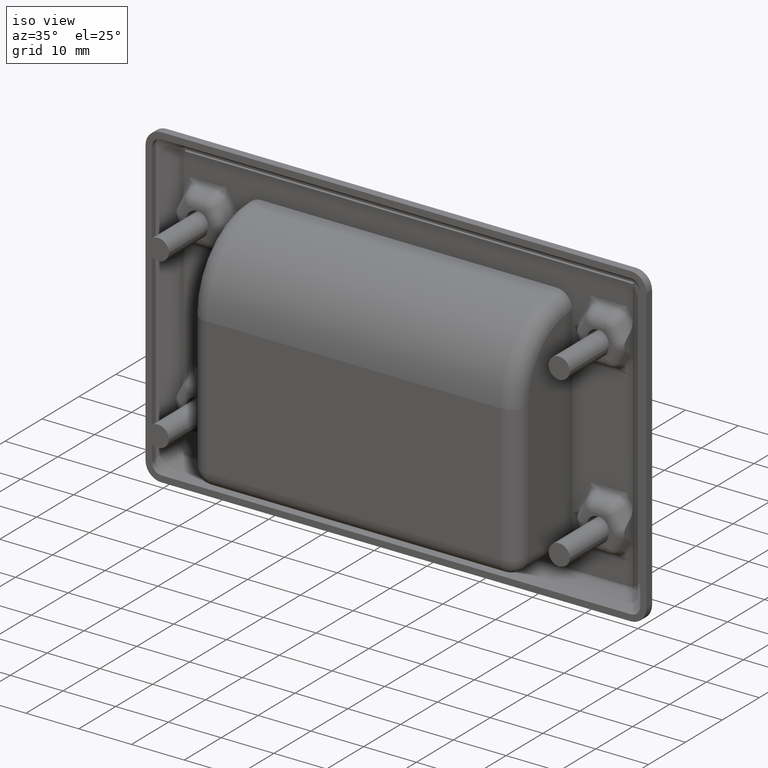
[diagram: clean part render]
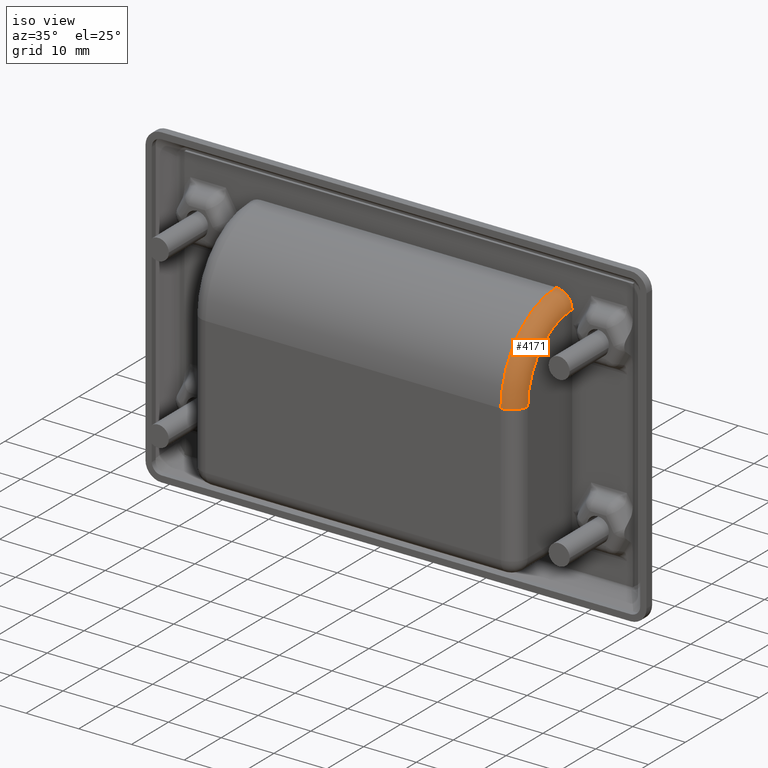
[diagram: same view with one face highlighted and labeled with its STEP entity id]
A machine part, iso view. The second image highlights one B-rep face of the part: STEP entity #4171.
In plain terms, the highlighted toroidal blend (fillet) surface has major radius 12 mm and minor (blend) radius 3 mm.
Its self-contained STEP definition (entity closure, byte-faithful):
#20=TOROIDAL_SURFACE('',#4644,12.,3.);
#1180=FACE_OUTER_BOUND('',#1470,.T.);
#1470=EDGE_LOOP('',(#3710,#3711,#3712,#3713));
#1658=CIRCLE('',#4642,15.);
#1659=CIRCLE('',#4645,3.);
#1660=CIRCLE('',#4646,12.);
#1661=CIRCLE('',#4647,3.);
#2005=VERTEX_POINT('',#8267);
#2006=VERTEX_POINT('',#8269);
#2008=VERTEX_POINT('',#8277);
#2009=VERTEX_POINT('',#8279);
#2588=EDGE_CURVE('',#2006,#2005,#1658,.T.);
#2592=EDGE_CURVE('',#2005,#2008,#1659,.T.);
#2593=EDGE_CURVE('',#2008,#2009,#1660,.T.);
#2594=EDGE_CURVE('',#2009,#2006,#1661,.F.);
#3710=ORIENTED_EDGE('',*,*,#2592,.T.);
#3711=ORIENTED_EDGE('',*,*,#2593,.T.);
#3712=ORIENTED_EDGE('',*,*,#2594,.T.);
#3713=ORIENTED_EDGE('',*,*,#2588,.T.);
#4171=ADVANCED_FACE('',(#1180),#20,.T.);
#4642=AXIS2_PLACEMENT_3D('',#8270,#5881,#5882);
#4644=AXIS2_PLACEMENT_3D('',#8276,#5888,#5889);
#4645=AXIS2_PLACEMENT_3D('',#8278,#5890,#5891);
#4646=AXIS2_PLACEMENT_3D('',#8280,#5892,#5893);
#4647=AXIS2_PLACEMENT_3D('',#8281,#5894,#5895);
#5881=DIRECTION('center_axis',(1.,0.,0.));
#5882=DIRECTION('ref_axis',(0.,0.707106781186547,0.707106781186548));
#5888=DIRECTION('center_axis',(1.,0.,0.));
#5889=DIRECTION('ref_axis',(0.,0.,-1.));
#5890=DIRECTION('center_axis',(0.,1.,7.40148683083439E-16));
#5891=DIRECTION('ref_axis',(0.,-7.40148683083439E-16,1.));
#5892=DIRECTION('center_axis',(-1.,0.,0.));
#5893=DIRECTION('ref_axis',(0.,0.707106781186547,0.707106781186548));
#5894=DIRECTION('center_axis',(0.,1.84147568988307E-16,-1.));
#5895=DIRECTION('ref_axis',(0.,1.,1.84147568988307E-16));
#8267=CARTESIAN_POINT('',(28.,6.99999999999997,15.5));
#8269=CARTESIAN_POINT('',(28.,22.,0.500000000000006));
#8270=CARTESIAN_POINT('Origin',(28.,6.99999999999998,0.500000000000003));
#8276=CARTESIAN_POINT('Origin',(28.,6.99999999999998,0.500000000000003));
#8277=CARTESIAN_POINT('',(31.,6.99999999999997,12.5));
#8278=CARTESIAN_POINT('Origin',(28.,6.99999999999997,12.5));
#8279=CARTESIAN_POINT('',(31.,19.,0.500000000000005));
#8280=CARTESIAN_POINT('Origin',(31.,6.99999999999998,0.500000000000003));
#8281=CARTESIAN_POINT('Origin',(28.,19.,0.500000000000005));